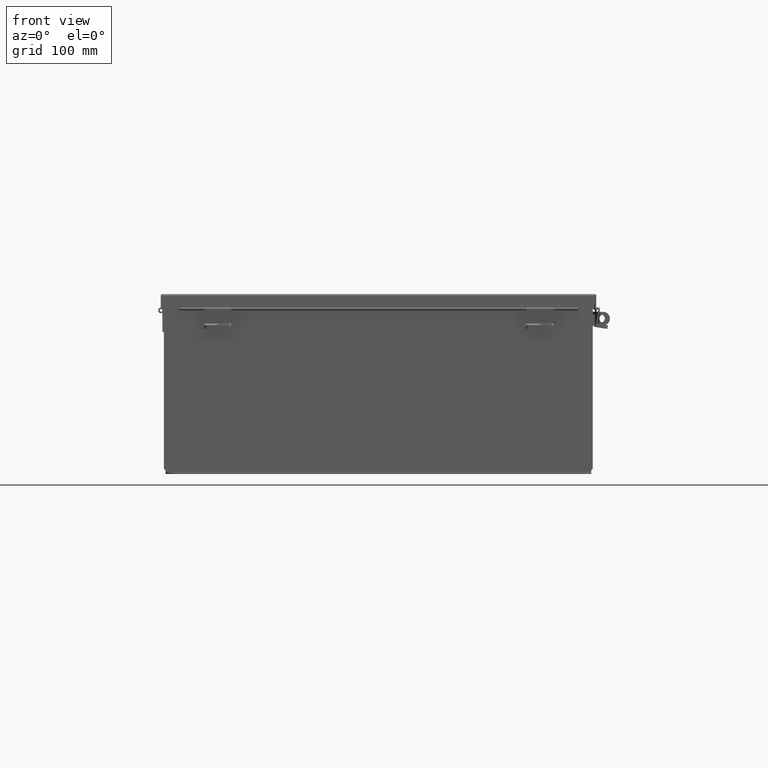
[diagram: clean part render]
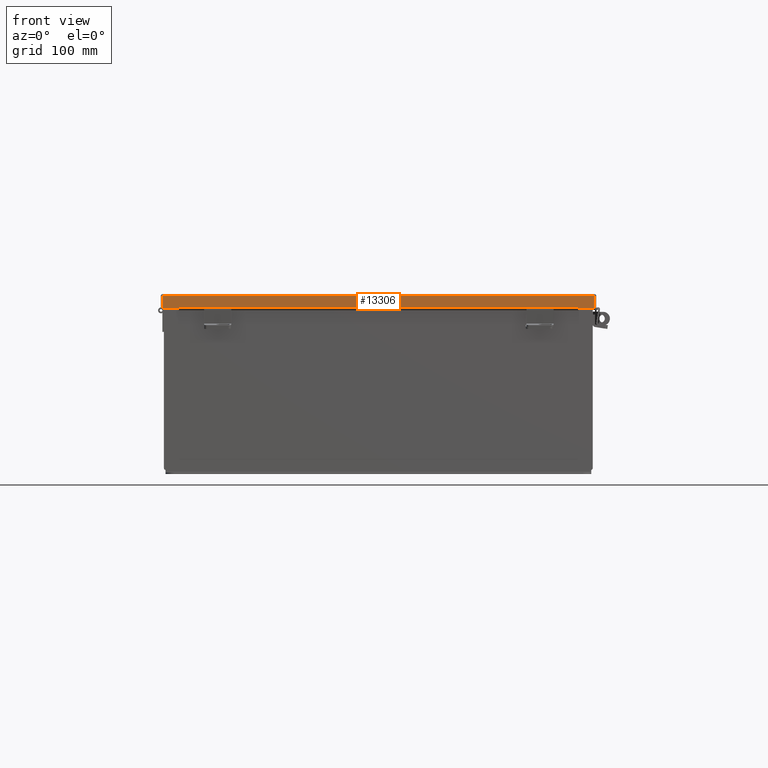
[diagram: same view with one face highlighted and labeled with its STEP entity id]
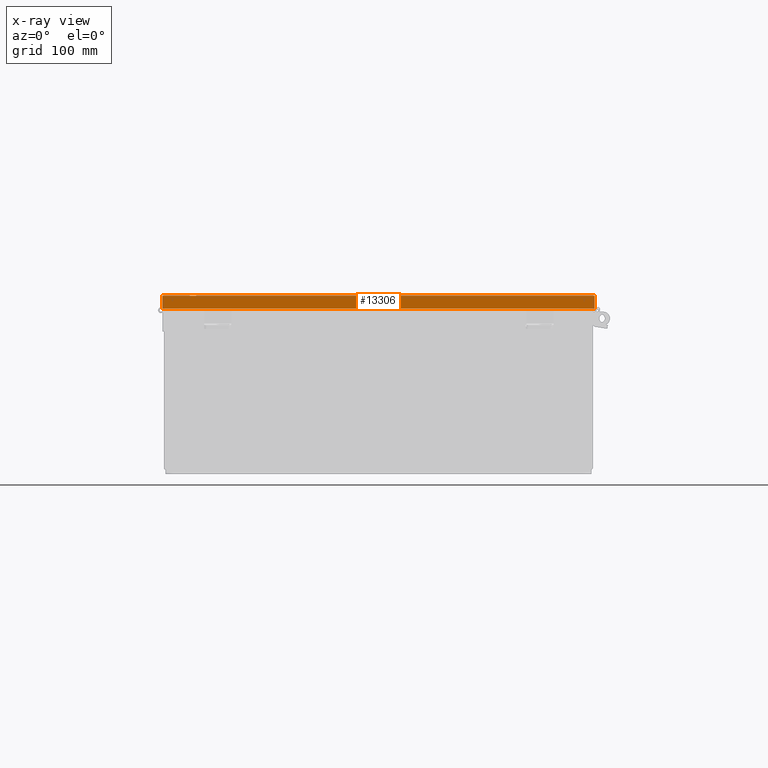
[diagram: x-ray of the same camera — body ghosted, the highlighted face saturated]
A machine part, front view. The second image highlights one B-rep face of the part: STEP entity #13306.
The next image is the same camera in x-ray: the body ghosted, the highlighted face saturated — about 0% of this face is hidden behind the body in this view.
In plain terms, the highlighted planar face has unit normal (0, 1, -0).
Its self-contained STEP definition (entity closure, byte-faithful):
#207 = EDGE_CURVE ( 'NONE', #22855, #5878, #6300, .T. ) ;
#325 = CARTESIAN_POINT ( 'NONE',  ( 10.07447893218817100, -12.15624999999999800, 0.01300000000000447800 ) ) ;
#1212 = DIRECTION ( 'NONE',  ( 0.0000000000000000000, -3.569293475308493700E-015, 1.000000000000000000 ) ) ;
#1584 = VERTEX_POINT ( 'NONE', #1775 ) ;
#1614 = EDGE_CURVE ( 'NONE', #5904, #11931, #13376, .T. ) ;
#1717 = LINE ( 'NONE', #4430, #5585 ) ;
#1775 = CARTESIAN_POINT ( 'NONE',  ( -9.324478932188162300, -12.15625000000000000, 0.5967115427318826500 ) ) ;
#1779 = DIRECTION ( 'NONE',  ( -1.000000000000000000, -1.075927825197026500E-016, -2.151855650394007300E-016 ) ) ;
#2084 = VECTOR ( 'NONE', #12752, 39.37007874015748100 ) ;
#4070 = CARTESIAN_POINT ( 'NONE',  ( -9.324478932188164000, -12.15625000000000000, 0.6123000000000005100 ) ) ;
#4430 = CARTESIAN_POINT ( 'NONE',  ( -9.324478932188164000, -12.15625000000000200, 0.5967115427318826500 ) ) ;
#4667 = VERTEX_POINT ( 'NONE', #13198 ) ;
#4673 = EDGE_CURVE ( 'NONE', #4667, #11931, #24084, .T. ) ;
#4892 = CARTESIAN_POINT ( 'NONE',  ( 1.307231950093251000E-015, -12.15624999999999800, -4.261682870116250900E-014 ) ) ;
#5019 = ORIENTED_EDGE ( 'NONE', *, *, #207, .T. ) ;
#5585 = VECTOR ( 'NONE', #21661, 39.37007874015748100 ) ;
#5878 = VERTEX_POINT ( 'NONE', #22909 ) ;
#5904 = VERTEX_POINT ( 'NONE', #11494 ) ;
#5939 = EDGE_LOOP ( 'NONE', ( #16394, #5019, #16889, #17648, #17328, #8895, #20608, #7717 ) ) ;
#5944 = DIRECTION ( 'NONE',  ( 7.009925220121877200E-014, -1.401985044024373700E-013, -1.000000000000000000 ) ) ;
#6238 = AXIS2_PLACEMENT_3D ( 'NONE', #4892, #12668, #1212 ) ;
#6300 = LINE ( 'NONE', #15807, #15883 ) ;
#7060 = VECTOR ( 'NONE', #11123, 39.37007874015748100 ) ;
#7579 = VECTOR ( 'NONE', #1779, 39.37007874015748100 ) ;
#7717 = ORIENTED_EDGE ( 'NONE', *, *, #11265, .F. ) ;
#8725 = CARTESIAN_POINT ( 'NONE',  ( -10.07447893218816600, -12.15625000000000000, 0.01300000000000010700 ) ) ;
#8895 = ORIENTED_EDGE ( 'NONE', *, *, #1614, .T. ) ;
#9581 = CARTESIAN_POINT ( 'NONE',  ( -9.324478932188164000, -12.15625000000000000, 0.6123000000000005100 ) ) ;
#10823 = CARTESIAN_POINT ( 'NONE',  ( -10.07447893218816200, -12.15624999999999800, 0.0000000000000000000 ) ) ;
#11123 = DIRECTION ( 'NONE',  ( -1.000000000000000000, -1.075927825197030600E-016, 3.362274453740340600E-018 ) ) ;
#11265 = EDGE_CURVE ( 'NONE', #1584, #4667, #1717, .T. ) ;
#11494 = CARTESIAN_POINT ( 'NONE',  ( 10.07447893218817100, -12.15625000000000000, 0.6122999999999994000 ) ) ;
#11534 = CARTESIAN_POINT ( 'NONE',  ( 1.301896309480625400E-015, -12.15625000000000000, 0.6123000000000080600 ) ) ;
#11931 = VERTEX_POINT ( 'NONE', #20069 ) ;
#12017 = CARTESIAN_POINT ( 'NONE',  ( 10.07447893218817100, -12.15624999999999800, -4.370956789862821100E-014 ) ) ;
#12668 = DIRECTION ( 'NONE',  ( -1.075927825196970900E-016, 1.000000000000000000, 3.569293475308493700E-015 ) ) ;
#12752 = DIRECTION ( 'NONE',  ( -0.0000000000000000000, -3.569293475308494500E-015, 1.000000000000000000 ) ) ;
#12999 = VERTEX_POINT ( 'NONE', #325 ) ;
#13198 = CARTESIAN_POINT ( 'NONE',  ( 9.324478932188171100, -12.15625000000000000, 0.5967115427318815400 ) ) ;
#13228 = CARTESIAN_POINT ( 'NONE',  ( -10.15625000000003200, -12.15625000000000000, 0.01299999999999901400 ) ) ;
#13306 = ADVANCED_FACE ( 'NONE', ( #23479 ), #24139, .F. ) ;
#13367 = CARTESIAN_POINT ( 'NONE',  ( 9.324478932188171100, -12.15625000000000200, 0.5967115427318815400 ) ) ;
#13376 = LINE ( 'NONE', #11534, #7060 ) ;
#13736 = VERTEX_POINT ( 'NONE', #8725 ) ;
#15807 = CARTESIAN_POINT ( 'NONE',  ( 1.301896309480625400E-015, -12.15625000000000000, 0.6123000000000080600 ) ) ;
#15883 = VECTOR ( 'NONE', #20857, 39.37007874015748100 ) ;
#16394 = ORIENTED_EDGE ( 'NONE', *, *, #23584, .F. ) ;
#16889 = ORIENTED_EDGE ( 'NONE', *, *, #21369, .F. ) ;
#17221 = EDGE_CURVE ( 'NONE', #12999, #5904, #19009, .T. ) ;
#17300 = LINE ( 'NONE', #10823, #2084 ) ;
#17328 = ORIENTED_EDGE ( 'NONE', *, *, #17221, .T. ) ;
#17648 = ORIENTED_EDGE ( 'NONE', *, *, #18333, .F. ) ;
#17702 = DIRECTION ( 'NONE',  ( 0.0000000000000000000, -3.569293475308494500E-015, 1.000000000000000000 ) ) ;
#18333 = EDGE_CURVE ( 'NONE', #12999, #13736, #22284, .T. ) ;
#18367 = VECTOR ( 'NONE', #19606, 39.37007874015748100 ) ;
#19009 = LINE ( 'NONE', #12017, #23531 ) ;
#19606 = DIRECTION ( 'NONE',  ( 0.0000000000000000000, 1.401985044024318400E-013, 1.000000000000000000 ) ) ;
#20069 = CARTESIAN_POINT ( 'NONE',  ( 9.324478932188171100, -12.15625000000000000, 0.6122999999999994000 ) ) ;
#20185 = LINE ( 'NONE', #4070, #24704 ) ;
#20608 = ORIENTED_EDGE ( 'NONE', *, *, #4673, .F. ) ;
#20857 = DIRECTION ( 'NONE',  ( -1.000000000000000000, -1.075927825197030600E-016, 3.362274453740340600E-018 ) ) ;
#21369 = EDGE_CURVE ( 'NONE', #13736, #5878, #17300, .T. ) ;
#21661 = DIRECTION ( 'NONE',  ( 1.000000000000000000, 3.215975411700707400E-030, -0.0000000000000000000 ) ) ;
#22284 = LINE ( 'NONE', #13228, #7579 ) ;
#22855 = VERTEX_POINT ( 'NONE', #9581 ) ;
#22909 = CARTESIAN_POINT ( 'NONE',  ( -10.07447893218816200, -12.15625000000000000, 0.6123000000000005100 ) ) ;
#23479 = FACE_OUTER_BOUND ( 'NONE', #5939, .T. ) ;
#23531 = VECTOR ( 'NONE', #17702, 39.37007874015748100 ) ;
#23584 = EDGE_CURVE ( 'NONE', #22855, #1584, #20185, .T. ) ;
#24084 = LINE ( 'NONE', #13367, #18367 ) ;
#24139 = PLANE ( 'NONE',  #6238 ) ;
#24704 = VECTOR ( 'NONE', #5944, 39.37007874015748100 ) ;